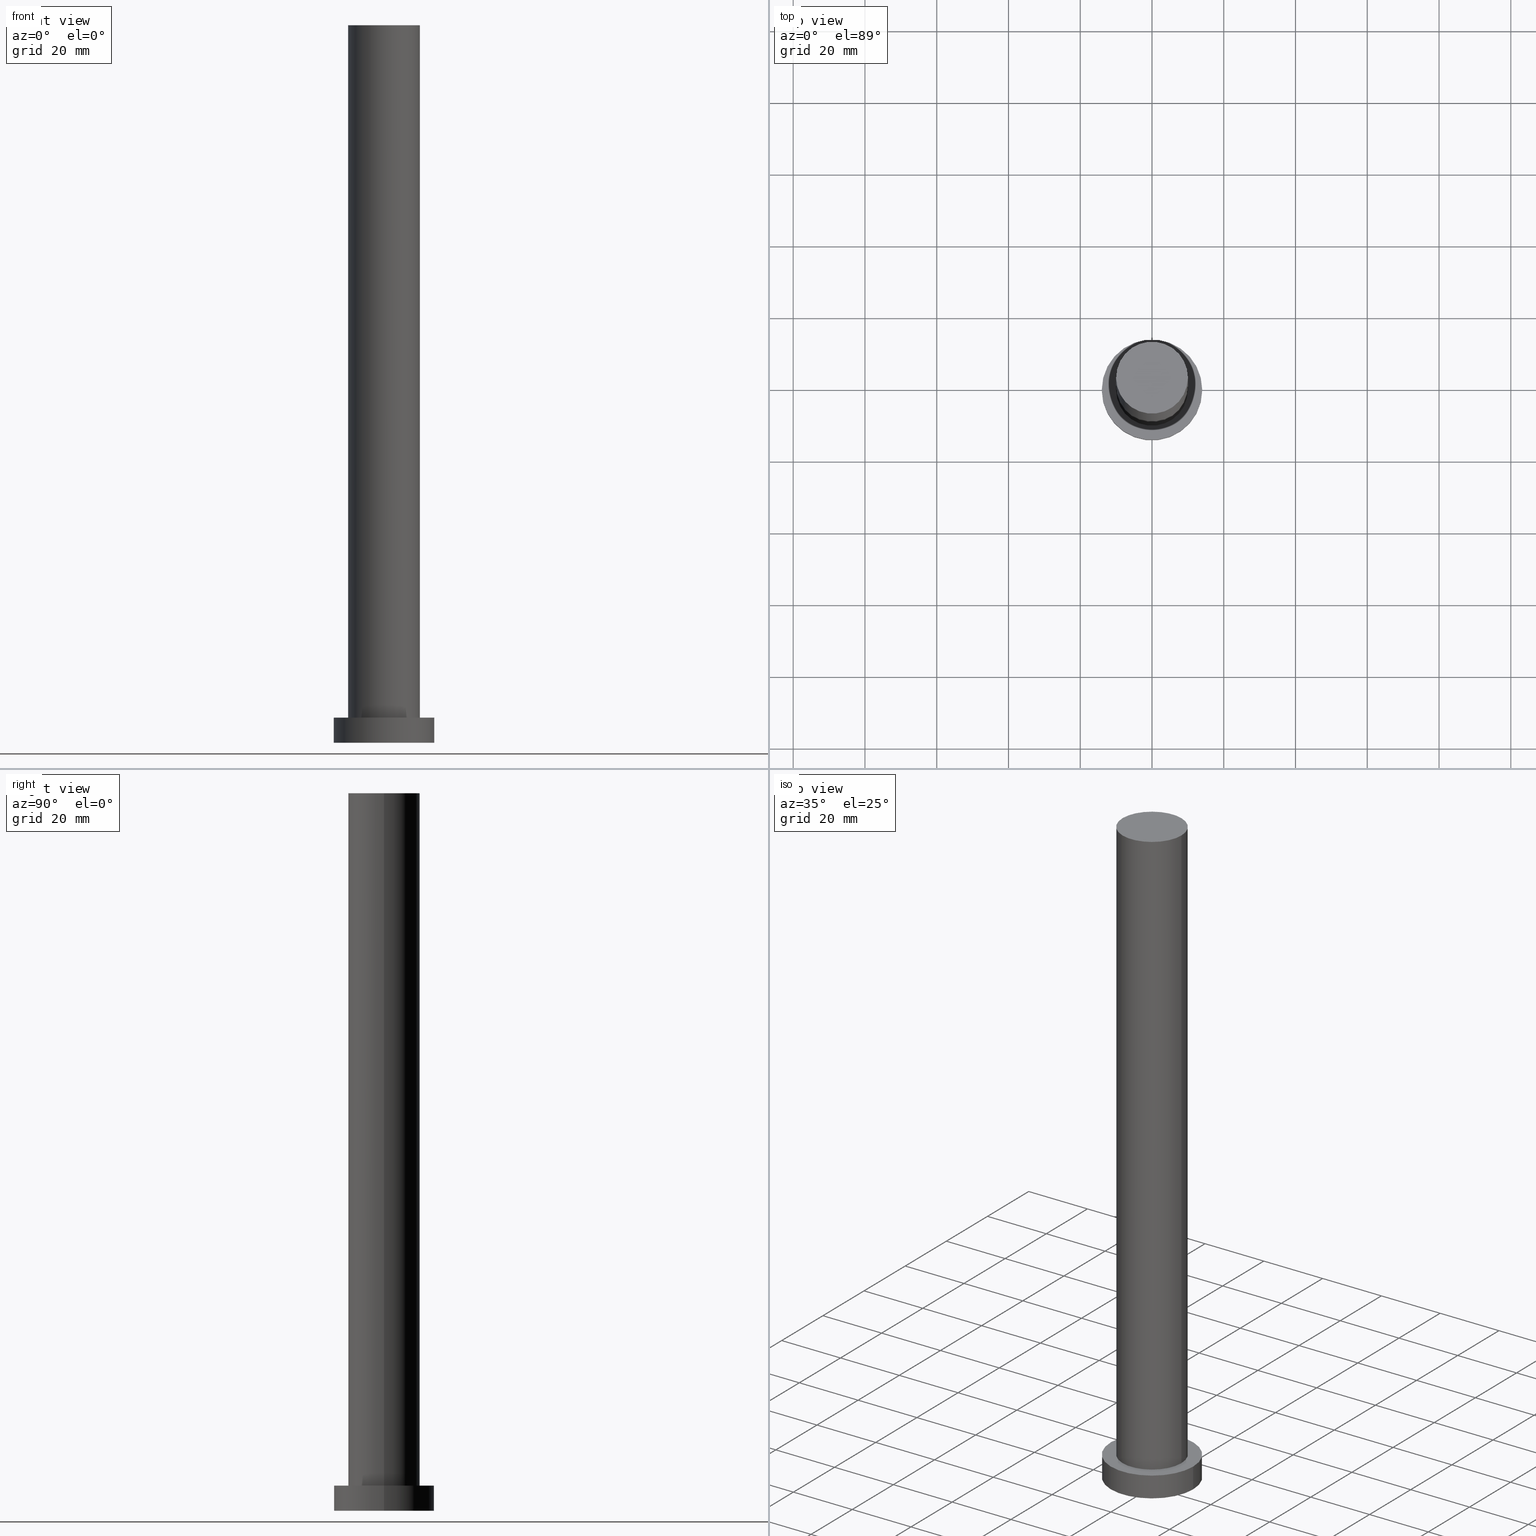
[diagram: canonical four-view strip — front | top / right | iso, engineering-drawing reading convention]
A machine part, canonical four-view strip (front | top / right | iso — engineering-drawing reading convention). The complete STEP part file that produces these views, byte-faithful:
ISO-10303-21;
HEADER;
FILE_DESCRIPTION (( 'STEP AP203' ),
    '1' );
FILE_NAME ('da7d.STEP',
    '2023-02-13T08:41:23',
    ( '' ),
    ( '' ),
    'SwSTEP 2.0',
    'SolidWorks 2019',
    '' );
FILE_SCHEMA (( 'CONFIG_CONTROL_DESIGN' ));
ENDSEC;

DATA;
#1 = CIRCLE ( 'NONE', #232, 14.00000000000000000 ) ;
#2 = AXIS2_PLACEMENT_3D ( 'NONE', #134, #241, #43 ) ;
#3 = EDGE_CURVE ( 'NONE', #47, #229, #73, .T. ) ;
#4 = FACE_OUTER_BOUND ( 'NONE', #219, .T. ) ;
#5 = CIRCLE ( 'NONE', #2, 10.00000000000000000 ) ;
#6 = DATE_AND_TIME ( #155, #175 ) ;
#7 = DIRECTION ( 'NONE',  ( -1.000000000000000000, 0.000000000000000000, 0.000000000000000000 ) ) ;
#8 = CARTESIAN_POINT ( 'NONE',  ( -10.00000000000000000, 0.000000000000000000, 200.0000000000000000 ) ) ;
#9 = LINE ( 'NONE', #8, #37 ) ;
#10 = CARTESIAN_POINT ( 'NONE',  ( 10.00000000000000000, 1.224646799147353256E-15, 7.000000000000000000 ) ) ;
#11 = PRODUCT ( 'da7d', 'da7d', '', ( #153 ) ) ;
#12 = DIRECTION ( 'NONE',  ( 1.000000000000000000, 0.000000000000000000, -0.000000000000000000 ) ) ;
#13 = EDGE_CURVE ( 'NONE', #150, #47, #203, .T. ) ;
#14 = AXIS2_PLACEMENT_3D ( 'NONE', #93, #239, #118 ) ;
#15 = CC_DESIGN_SECURITY_CLASSIFICATION ( #133, ( #253 ) ) ;
#16 = ORIENTED_EDGE ( 'NONE', *, *, #198, .F. ) ;
#17 = ORIENTED_EDGE ( 'NONE', *, *, #13, .F. ) ;
#18 = EDGE_CURVE ( 'NONE', #150, #178, #5, .T. ) ;
#19 = APPROVAL_DATE_TIME ( #131, #92 ) ;
#20 = VERTEX_POINT ( 'NONE', #244 ) ;
#21 = APPROVAL_STATUS ( 'not_yet_approved' ) ;
#22 = LINE ( 'NONE', #208, #146 ) ;
#23 = PERSON_AND_ORGANIZATION_ROLE ( 'design_owner' ) ;
#24 = LOCAL_TIME ( 9, 41, 23.00000000000000000, #116 ) ;
#25 = DIRECTION ( 'NONE',  ( 0.000000000000000000, 0.000000000000000000, 1.000000000000000000 ) ) ;
#26 = DIRECTION ( 'NONE',  ( 0.000000000000000000, 0.000000000000000000, 1.000000000000000000 ) ) ;
#27 = APPROVAL_ROLE ( '' ) ;
#28 = CARTESIAN_POINT ( 'NONE',  ( 10.00000000000000000, 1.224646799147353256E-15, 200.0000000000000000 ) ) ;
#29 = COORDINATED_UNIVERSAL_TIME_OFFSET ( 1, 0, .AHEAD. ) ;
#30 = CARTESIAN_POINT ( 'NONE',  ( -10.00000000000000000, 0.000000000000000000, 200.0000000000000000 ) ) ;
#31 = ADVANCED_FACE ( 'NONE', ( #95 ), #119, .T. ) ;
#32 = CARTESIAN_POINT ( 'NONE',  ( 0.000000000000000000, 0.000000000000000000, 0.000000000000000000 ) ) ;
#33 = PLANE ( 'NONE',  #137 ) ;
#34 = APPROVAL_PERSON_ORGANIZATION ( #184, #58, #27 ) ;
#35 = APPLICATION_CONTEXT ( 'configuration controlled 3d designs of mechanical parts and assemblies' ) ;
#36 = CC_DESIGN_PERSON_AND_ORGANIZATION_ASSIGNMENT ( #202, #235, ( #251 ) ) ;
#37 = VECTOR ( 'NONE', #75, 1000.000000000000000 ) ;
#38 = EDGE_CURVE ( 'NONE', #143, #90, #127, .T. ) ;
#39 = ORIENTED_EDGE ( 'NONE', *, *, #18, .F. ) ;
#40 = EDGE_CURVE ( 'NONE', #178, #150, #114, .T. ) ;
#41 = DIRECTION ( 'NONE',  ( -1.000000000000000000, 0.000000000000000000, 0.000000000000000000 ) ) ;
#42 = FACE_OUTER_BOUND ( 'NONE', #254, .T. ) ;
#43 = DIRECTION ( 'NONE',  ( 1.000000000000000000, 0.000000000000000000, 0.000000000000000000 ) ) ;
#44 = DIRECTION ( 'NONE',  ( 1.000000000000000000, 0.000000000000000000, 0.000000000000000000 ) ) ;
#45 = DIRECTION ( 'NONE',  ( -0.000000000000000000, -0.000000000000000000, -1.000000000000000000 ) ) ;
#46 = DIRECTION ( 'NONE',  ( 1.000000000000000000, 0.000000000000000000, -0.000000000000000000 ) ) ;
#47 = VERTEX_POINT ( 'NONE', #10 ) ;
#48 = CYLINDRICAL_SURFACE ( 'NONE', #194, 14.00000000000000000 ) ;
#49 =( NAMED_UNIT ( * ) PLANE_ANGLE_UNIT ( ) SI_UNIT ( $, .RADIAN. ) );
#50 = ORIENTED_EDGE ( 'NONE', *, *, #40, .F. ) ;
#51 = PRODUCT_RELATED_PRODUCT_CATEGORY ( 'detail', '', ( #11 ) ) ;
#52 = AXIS2_PLACEMENT_3D ( 'NONE', #32, #107, #12 ) ;
#53 = APPROVAL_STATUS ( 'not_yet_approved' ) ;
#54 = ORIENTED_EDGE ( 'NONE', *, *, #185, .T. ) ;
#55 = PERSON_AND_ORGANIZATION ( #139, #250 ) ;
#56 = DIRECTION ( 'NONE',  ( -0.000000000000000000, -0.000000000000000000, -1.000000000000000000 ) ) ;
#57 = CARTESIAN_POINT ( 'NONE',  ( 14.00000000000000000, 1.714505518806294638E-15, 0.000000000000000000 ) ) ;
#58 = APPROVAL ( #211, 'NEUR�EN�' ) ;
#59 = FACE_OUTER_BOUND ( 'NONE', #87, .T. ) ;
#60 = PERSON_AND_ORGANIZATION ( #139, #250 ) ;
#61 = DIRECTION ( 'NONE',  ( 1.000000000000000000, 0.000000000000000000, 0.000000000000000000 ) ) ;
#62 = DIRECTION ( 'NONE',  ( -0.000000000000000000, -0.000000000000000000, -1.000000000000000000 ) ) ;
#63 = DATE_AND_TIME ( #161, #24 ) ;
#64 = MANIFOLD_SOLID_BREP ( 'P�idat vysunut�m3', #169 ) ;
#65 = DIRECTION ( 'NONE',  ( 1.000000000000000000, 0.000000000000000000, -0.000000000000000000 ) ) ;
#66 = ORIENTED_EDGE ( 'NONE', *, *, #38, .F. ) ;
#67 = AXIS2_PLACEMENT_3D ( 'NONE', #223, #162, #210 ) ;
#68 = CC_DESIGN_APPROVAL ( #92, ( #251 ) ) ;
#69 = PERSON_AND_ORGANIZATION ( #139, #250 ) ;
#70 = ORIENTED_EDGE ( 'NONE', *, *, #159, .T. ) ;
#71 = COORDINATED_UNIVERSAL_TIME_OFFSET ( 1, 0, .AHEAD. ) ;
#72 = EDGE_LOOP ( 'NONE', ( #248, #88 ) ) ;
#73 = CIRCLE ( 'NONE', #234, 10.00000000000000000 ) ;
#74 = DIRECTION ( 'NONE',  ( 1.000000000000000000, 0.000000000000000000, 0.000000000000000000 ) ) ;
#75 = DIRECTION ( 'NONE',  ( -0.000000000000000000, -0.000000000000000000, -1.000000000000000000 ) ) ;
#76 = PERSON_AND_ORGANIZATION ( #139, #250 ) ;
#77 = CARTESIAN_POINT ( 'NONE',  ( 14.00000000000000000, 1.714505518806294638E-15, 7.000000000000000000 ) ) ;
#78 = PERSON_AND_ORGANIZATION_ROLE ( 'creator' ) ;
#79 = ORIENTED_EDGE ( 'NONE', *, *, #126, .T. ) ;
#80 = AXIS2_PLACEMENT_3D ( 'NONE', #237, #56, #41 ) ;
#81 = LINE ( 'NONE', #242, #85 ) ;
#82 = APPROVAL_PERSON_ORGANIZATION ( #69, #92, #199 ) ;
#83 = DIRECTION ( 'NONE',  ( 0.000000000000000000, 0.000000000000000000, 1.000000000000000000 ) ) ;
#84 = ORIENTED_EDGE ( 'NONE', *, *, #3, .T. ) ;
#85 = VECTOR ( 'NONE', #181, 1000.000000000000000 ) ;
#86 = DIRECTION ( 'NONE',  ( 0.000000000000000000, 0.000000000000000000, 1.000000000000000000 ) ) ;
#87 = EDGE_LOOP ( 'NONE', ( #70, #79 ) ) ;
#88 = ORIENTED_EDGE ( 'NONE', *, *, #18, .T. ) ;
#89 = DATE_TIME_ROLE ( 'creation_date' ) ;
#90 = VERTEX_POINT ( 'NONE', #57 ) ;
#91 = APPROVAL_ROLE ( '' ) ;
#92 = APPROVAL ( #53, 'NEUR�EN�' ) ;
#93 = CARTESIAN_POINT ( 'NONE',  ( 0.000000000000000000, 0.000000000000000000, 200.0000000000000000 ) ) ;
#94 = APPROVAL_PERSON_ORGANIZATION ( #55, #212, #91 ) ;
#95 = FACE_OUTER_BOUND ( 'NONE', #136, .T. ) ;
#96 = DESIGN_CONTEXT ( 'detailed design', #149, 'design' ) ;
#97 = DIRECTION ( 'NONE',  ( 1.000000000000000000, 0.000000000000000000, 0.000000000000000000 ) ) ;
#98 = PERSON_AND_ORGANIZATION_ROLE ( 'classification_officer' ) ;
#99 = DIRECTION ( 'NONE',  ( 0.000000000000000000, 0.000000000000000000, 1.000000000000000000 ) ) ;
#100 = CIRCLE ( 'NONE', #117, 10.00000000000000000 ) ;
#101 = CARTESIAN_POINT ( 'NONE',  ( 0.000000000000000000, 0.000000000000000000, 0.000000000000000000 ) ) ;
#102 = PERSON_AND_ORGANIZATION ( #139, #250 ) ;
#103 = SECURITY_CLASSIFICATION_LEVEL ( 'unclassified' ) ;
#104 = EDGE_CURVE ( 'NONE', #20, #143, #22, .T. ) ;
#105 = AXIS2_PLACEMENT_3D ( 'NONE', #221, #86, #174 ) ;
#106 = EDGE_LOOP ( 'NONE', ( #16, #177 ) ) ;
#107 = DIRECTION ( 'NONE',  ( 0.000000000000000000, 0.000000000000000000, 1.000000000000000000 ) ) ;
#108 = APPLICATION_PROTOCOL_DEFINITION ( 'international standard', 'config_control_design', 1994, #35 ) ;
#109 = LOCAL_TIME ( 9, 41, 23.00000000000000000, #129 ) ;
#110 = CC_DESIGN_DATE_AND_TIME_ASSIGNMENT ( #225, #240, ( #133 ) ) ;
#111 = DATE_AND_TIME ( #217, #109 ) ;
#112 = VERTEX_POINT ( 'NONE', #77 ) ;
#113 = PLANE ( 'NONE',  #236 ) ;
#114 = CIRCLE ( 'NONE', #14, 10.00000000000000000 ) ;
#115 = CARTESIAN_POINT ( 'NONE',  ( -14.00000000000000000, 0.000000000000000000, 0.000000000000000000 ) ) ;
#116 = COORDINATED_UNIVERSAL_TIME_OFFSET ( 1, 0, .AHEAD. ) ;
#117 = AXIS2_PLACEMENT_3D ( 'NONE', #138, #25, #61 ) ;
#118 = DIRECTION ( 'NONE',  ( 1.000000000000000000, 0.000000000000000000, 0.000000000000000000 ) ) ;
#119 = CYLINDRICAL_SURFACE ( 'NONE', #231, 10.00000000000000000 ) ;
#120 = CARTESIAN_POINT ( 'NONE',  ( 0.000000000000000000, 0.000000000000000000, 200.0000000000000000 ) ) ;
#121 = APPROVAL_DATE_TIME ( #6, #212 ) ;
#122 = EDGE_CURVE ( 'NONE', #112, #90, #81, .T. ) ;
#123 = CARTESIAN_POINT ( 'NONE',  ( -10.00000000000000000, 0.000000000000000000, 7.000000000000000000 ) ) ;
#124 = FACE_OUTER_BOUND ( 'NONE', #72, .T. ) ;
#125 = ORIENTED_EDGE ( 'NONE', *, *, #104, .T. ) ;
#126 = EDGE_CURVE ( 'NONE', #112, #20, #1, .T. ) ;
#127 = CIRCLE ( 'NONE', #164, 14.00000000000000000 ) ;
#128 = LOCAL_TIME ( 9, 41, 23.00000000000000000, #29 ) ;
#129 = COORDINATED_UNIVERSAL_TIME_OFFSET ( 1, 0, .AHEAD. ) ;
#130 = ORIENTED_EDGE ( 'NONE', *, *, #159, .F. ) ;
#131 = DATE_AND_TIME ( #151, #171 ) ;
#132 = ORIENTED_EDGE ( 'NONE', *, *, #122, .F. ) ;
#133 = SECURITY_CLASSIFICATION ( '', '', #103 ) ;
#134 = CARTESIAN_POINT ( 'NONE',  ( 0.000000000000000000, 0.000000000000000000, 200.0000000000000000 ) ) ;
#135 = CARTESIAN_POINT ( 'NONE',  ( 0.000000000000000000, 0.000000000000000000, 7.000000000000000000 ) ) ;
#136 = EDGE_LOOP ( 'NONE', ( #17, #50, #201, #176 ) ) ;
#137 = AXIS2_PLACEMENT_3D ( 'NONE', #190, #249, #65 ) ;
#138 = CARTESIAN_POINT ( 'NONE',  ( 0.000000000000000000, 0.000000000000000000, 7.000000000000000000 ) ) ;
#139 = PERSON ( 'NEUR�EN�', 'NEUR�EN�', 'NEUR�EN�', ('NEUR�EN�'), ('NEUR�EN�'), ('NEUR�EN�') ) ;
#140 = CARTESIAN_POINT ( 'NONE',  ( 0.000000000000000000, 0.000000000000000000, 200.0000000000000000 ) ) ;
#141 = ADVANCED_FACE ( 'NONE', ( #42 ), #227, .T. ) ;
#142 = FACE_OUTER_BOUND ( 'NONE', #193, .T. ) ;
#143 = VERTEX_POINT ( 'NONE', #115 ) ;
#144 = AXIS2_PLACEMENT_3D ( 'NONE', #101, #220, #74 ) ;
#145 =( LENGTH_UNIT ( ) NAMED_UNIT ( * ) SI_UNIT ( .MILLI., .METRE. ) );
#146 = VECTOR ( 'NONE', #62, 1000.000000000000000 ) ;
#147 = CC_DESIGN_PERSON_AND_ORGANIZATION_ASSIGNMENT ( #102, #78, ( #253 ) ) ;
#148 = APPLICATION_PROTOCOL_DEFINITION ( 'international standard', 'config_control_design', 1994, #149 ) ;
#149 = APPLICATION_CONTEXT ( 'configuration controlled 3d designs of mechanical parts and assemblies' ) ;
#150 = VERTEX_POINT ( 'NONE', #205 ) ;
#151 = CALENDAR_DATE ( 2023, 13, 2 ) ;
#152 = ORIENTED_EDGE ( 'NONE', *, *, #104, .F. ) ;
#153 = MECHANICAL_CONTEXT ( 'NONE', #35, 'mechanical' ) ;
#154 = CYLINDRICAL_SURFACE ( 'NONE', #80, 14.00000000000000000 ) ;
#155 = CALENDAR_DATE ( 2023, 13, 2 ) ;
#156 = CARTESIAN_POINT ( 'NONE',  ( 0.000000000000000000, 0.000000000000000000, 0.000000000000000000 ) ) ;
#157 = DIRECTION ( 'NONE',  ( -0.000000000000000000, -0.000000000000000000, -1.000000000000000000 ) ) ;
#158 = CALENDAR_DATE ( 2023, 13, 2 ) ;
#159 = EDGE_CURVE ( 'NONE', #20, #112, #180, .T. ) ;
#160 = DIRECTION ( 'NONE',  ( -1.000000000000000000, 0.000000000000000000, 0.000000000000000000 ) ) ;
#161 = CALENDAR_DATE ( 2023, 13, 2 ) ;
#162 = DIRECTION ( 'NONE',  ( 0.000000000000000000, 0.000000000000000000, 1.000000000000000000 ) ) ;
#163 = AXIS2_PLACEMENT_3D ( 'NONE', #120, #186, #7 ) ;
#164 = AXIS2_PLACEMENT_3D ( 'NONE', #156, #99, #188 ) ;
#165 = CARTESIAN_POINT ( 'NONE',  ( 0.000000000000000000, 0.000000000000000000, 7.000000000000000000 ) ) ;
#166 = ADVANCED_BREP_SHAPE_REPRESENTATION ( 'da7d', ( #64, #105 ), #206 ) ;
#167 = FACE_OUTER_BOUND ( 'NONE', #168, .T. ) ;
#168 = EDGE_LOOP ( 'NONE', ( #132, #130, #125, #215 ) ) ;
#169 = CLOSED_SHELL ( 'NONE', ( #141, #200, #238, #216, #246, #31, #243 ) ) ;
#170 = ORIENTED_EDGE ( 'NONE', *, *, #126, .F. ) ;
#171 = LOCAL_TIME ( 9, 41, 23.00000000000000000, #71 ) ;
#172 = EDGE_CURVE ( 'NONE', #178, #229, #9, .T. ) ;
#173 = ORIENTED_EDGE ( 'NONE', *, *, #13, .T. ) ;
#174 = DIRECTION ( 'NONE',  ( 1.000000000000000000, 0.000000000000000000, 0.000000000000000000 ) ) ;
#175 = LOCAL_TIME ( 9, 41, 23.00000000000000000, #179 ) ;
#176 = ORIENTED_EDGE ( 'NONE', *, *, #198, .T. ) ;
#177 = ORIENTED_EDGE ( 'NONE', *, *, #3, .F. ) ;
#178 = VERTEX_POINT ( 'NONE', #30 ) ;
#179 = COORDINATED_UNIVERSAL_TIME_OFFSET ( 1, 0, .AHEAD. ) ;
#180 = CIRCLE ( 'NONE', #67, 14.00000000000000000 ) ;
#181 = DIRECTION ( 'NONE',  ( -0.000000000000000000, -0.000000000000000000, -1.000000000000000000 ) ) ;
#182 = PRODUCT_DEFINITION_SHAPE ( 'NONE', 'NONE',  #251 ) ;
#183 = FACE_BOUND ( 'NONE', #106, .T. ) ;
#184 = PERSON_AND_ORGANIZATION ( #139, #250 ) ;
#185 = EDGE_CURVE ( 'NONE', #90, #143, #214, .T. ) ;
#186 = DIRECTION ( 'NONE',  ( -0.000000000000000000, -0.000000000000000000, -1.000000000000000000 ) ) ;
#187 = UNCERTAINTY_MEASURE_WITH_UNIT (LENGTH_MEASURE( 1.000000000000000082E-05 ), #145, 'distance_accuracy_value', 'NONE');
#188 = DIRECTION ( 'NONE',  ( 1.000000000000000000, 0.000000000000000000, 0.000000000000000000 ) ) ;
#189 = CC_DESIGN_PERSON_AND_ORGANIZATION_ASSIGNMENT ( #60, #245, ( #253 ) ) ;
#190 = CARTESIAN_POINT ( 'NONE',  ( 0.000000000000000000, 0.000000000000000000, 200.0000000000000000 ) ) ;
#191 = APPROVAL_DATE_TIME ( #63, #58 ) ;
#192 =( NAMED_UNIT ( * ) SI_UNIT ( $, .STERADIAN. ) SOLID_ANGLE_UNIT ( ) );
#193 = EDGE_LOOP ( 'NONE', ( #66, #255 ) ) ;
#194 = AXIS2_PLACEMENT_3D ( 'NONE', #165, #247, #213 ) ;
#195 = CARTESIAN_POINT ( 'NONE',  ( 0.000000000000000000, 0.000000000000000000, 7.000000000000000000 ) ) ;
#196 = ORIENTED_EDGE ( 'NONE', *, *, #122, .T. ) ;
#197 = CC_DESIGN_DATE_AND_TIME_ASSIGNMENT ( #111, #89, ( #251 ) ) ;
#198 = EDGE_CURVE ( 'NONE', #229, #47, #100, .T. ) ;
#199 = APPROVAL_ROLE ( '' ) ;
#200 = ADVANCED_FACE ( 'NONE', ( #4 ), #154, .T. ) ;
#201 = ORIENTED_EDGE ( 'NONE', *, *, #172, .T. ) ;
#202 = PERSON_AND_ORGANIZATION ( #139, #250 ) ;
#203 = LINE ( 'NONE', #28, #228 ) ;
#204 = CC_DESIGN_PERSON_AND_ORGANIZATION_ASSIGNMENT ( #252, #23, ( #11 ) ) ;
#205 = CARTESIAN_POINT ( 'NONE',  ( 10.00000000000000000, 1.224646799147353256E-15, 200.0000000000000000 ) ) ;
#206 =( GEOMETRIC_REPRESENTATION_CONTEXT ( 3 ) GLOBAL_UNCERTAINTY_ASSIGNED_CONTEXT ( ( #187 ) ) GLOBAL_UNIT_ASSIGNED_CONTEXT ( ( #145, #49, #192 ) ) REPRESENTATION_CONTEXT ( 'NONE', 'WORKASPACE' ) );
#207 = SHAPE_DEFINITION_REPRESENTATION ( #182, #166 ) ;
#208 = CARTESIAN_POINT ( 'NONE',  ( -14.00000000000000000, 0.000000000000000000, 7.000000000000000000 ) ) ;
#209 = DIRECTION ( 'NONE',  ( 0.000000000000000000, 0.000000000000000000, 1.000000000000000000 ) ) ;
#210 = DIRECTION ( 'NONE',  ( 1.000000000000000000, 0.000000000000000000, 0.000000000000000000 ) ) ;
#211 = APPROVAL_STATUS ( 'not_yet_approved' ) ;
#212 = APPROVAL ( #21, 'NEUR�EN�' ) ;
#213 = DIRECTION ( 'NONE',  ( -1.000000000000000000, 0.000000000000000000, 0.000000000000000000 ) ) ;
#214 = CIRCLE ( 'NONE', #144, 14.00000000000000000 ) ;
#215 = ORIENTED_EDGE ( 'NONE', *, *, #38, .T. ) ;
#216 = ADVANCED_FACE ( 'NONE', ( #183, #59 ), #113, .T. ) ;
#217 = CALENDAR_DATE ( 2023, 13, 2 ) ;
#218 = ORIENTED_EDGE ( 'NONE', *, *, #172, .F. ) ;
#219 = EDGE_LOOP ( 'NONE', ( #170, #196, #54, #152 ) ) ;
#220 = DIRECTION ( 'NONE',  ( 0.000000000000000000, 0.000000000000000000, 1.000000000000000000 ) ) ;
#221 = CARTESIAN_POINT ( 'NONE',  ( 0.000000000000000000, 0.000000000000000000, 0.000000000000000000 ) ) ;
#222 = CC_DESIGN_PERSON_AND_ORGANIZATION_ASSIGNMENT ( #76, #98, ( #133 ) ) ;
#223 = CARTESIAN_POINT ( 'NONE',  ( 0.000000000000000000, 0.000000000000000000, 7.000000000000000000 ) ) ;
#224 = CC_DESIGN_APPROVAL ( #212, ( #253 ) ) ;
#225 = DATE_AND_TIME ( #158, #128 ) ;
#226 = CARTESIAN_POINT ( 'NONE',  ( 0.000000000000000000, 0.000000000000000000, 7.000000000000000000 ) ) ;
#227 = CYLINDRICAL_SURFACE ( 'NONE', #163, 10.00000000000000000 ) ;
#228 = VECTOR ( 'NONE', #157, 1000.000000000000000 ) ;
#229 = VERTEX_POINT ( 'NONE', #123 ) ;
#230 = PLANE ( 'NONE',  #52 ) ;
#231 = AXIS2_PLACEMENT_3D ( 'NONE', #140, #45, #160 ) ;
#232 = AXIS2_PLACEMENT_3D ( 'NONE', #135, #26, #97 ) ;
#233 = CC_DESIGN_APPROVAL ( #58, ( #133 ) ) ;
#234 = AXIS2_PLACEMENT_3D ( 'NONE', #226, #209, #44 ) ;
#235 = PERSON_AND_ORGANIZATION_ROLE ( 'creator' ) ;
#236 = AXIS2_PLACEMENT_3D ( 'NONE', #195, #83, #46 ) ;
#237 = CARTESIAN_POINT ( 'NONE',  ( 0.000000000000000000, 0.000000000000000000, 7.000000000000000000 ) ) ;
#238 = ADVANCED_FACE ( 'NONE', ( #167 ), #48, .T. ) ;
#239 = DIRECTION ( 'NONE',  ( 0.000000000000000000, 0.000000000000000000, 1.000000000000000000 ) ) ;
#240 = DATE_TIME_ROLE ( 'classification_date' ) ;
#241 = DIRECTION ( 'NONE',  ( 0.000000000000000000, 0.000000000000000000, 1.000000000000000000 ) ) ;
#242 = CARTESIAN_POINT ( 'NONE',  ( 14.00000000000000000, 1.714505518806294638E-15, 7.000000000000000000 ) ) ;
#243 = ADVANCED_FACE ( 'NONE', ( #124 ), #33, .T. ) ;
#244 = CARTESIAN_POINT ( 'NONE',  ( -14.00000000000000000, 0.000000000000000000, 7.000000000000000000 ) ) ;
#245 = PERSON_AND_ORGANIZATION_ROLE ( 'design_supplier' ) ;
#246 = ADVANCED_FACE ( 'NONE', ( #142 ), #230, .F. ) ;
#247 = DIRECTION ( 'NONE',  ( -0.000000000000000000, -0.000000000000000000, -1.000000000000000000 ) ) ;
#248 = ORIENTED_EDGE ( 'NONE', *, *, #40, .T. ) ;
#249 = DIRECTION ( 'NONE',  ( 0.000000000000000000, 0.000000000000000000, 1.000000000000000000 ) ) ;
#250 = ORGANIZATION ( 'NEUR�EN�', 'NEUR�EN�', '' ) ;
#251 = PRODUCT_DEFINITION ( 'NEZN�M�', '', #253, #96 ) ;
#252 = PERSON_AND_ORGANIZATION ( #139, #250 ) ;
#253 = PRODUCT_DEFINITION_FORMATION_WITH_SPECIFIED_SOURCE ( 'LIBOVOLN�', '', #11, .NOT_KNOWN. ) ;
#254 = EDGE_LOOP ( 'NONE', ( #39, #173, #84, #218 ) ) ;
#255 = ORIENTED_EDGE ( 'NONE', *, *, #185, .F. ) ;
ENDSEC;
END-ISO-10303-21;
